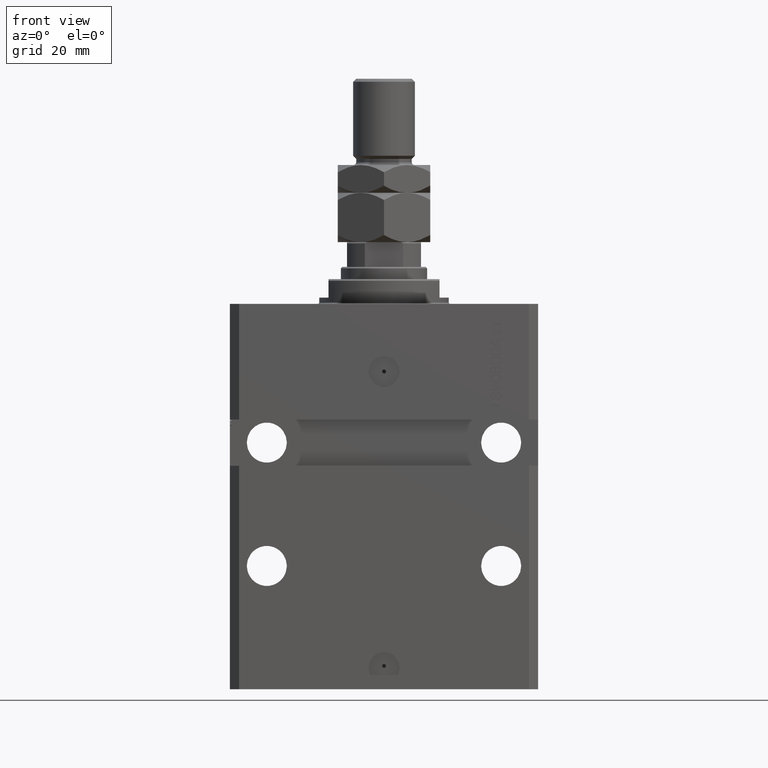
[diagram: clean part render]
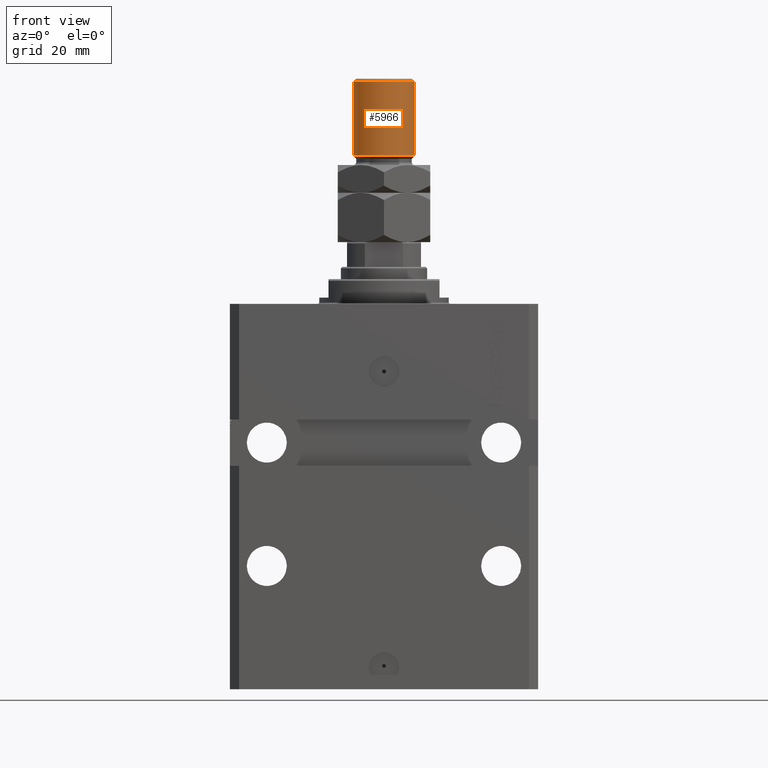
[diagram: same view with one face highlighted and labeled with its STEP entity id]
A machine part, front view. The second image highlights one B-rep face of the part: STEP entity #5966.
In plain terms, the highlighted cylindrical surface (edge-blend (fillet) strip) has radius 10 mm, axis along (-0, -0, -1).
Its self-contained STEP definition (entity closure, byte-faithful):
#3225 = CARTESIAN_POINT ( 'NONE',  ( 0.000000000000000000, 0.000000000000000000, 28.00000000000002487 ) ) ;
#4107 = CARTESIAN_POINT ( 'NONE',  ( 10.00000000000000000, 1.224646799147353059E-15, 52.00000000000004974 ) ) ;
#5966 = ADVANCED_FACE ( 'NONE', ( #34441 ), #23861, .T. ) ;
#8005 = DIRECTION ( 'NONE',  ( -0.000000000000000000, -0.000000000000000000, 1.000000000000000000 ) ) ;
#8508 = CARTESIAN_POINT ( 'NONE',  ( 0.000000000000000000, 0.000000000000000000, 53.00000000000000711 ) ) ;
#9882 = AXIS2_PLACEMENT_3D ( 'NONE', #8508, #34936, #38475 ) ;
#12703 = CIRCLE ( 'NONE', #30361, 10.00000000000000000 ) ;
#18334 = DIRECTION ( 'NONE',  ( -0.000000000000000000, -0.000000000000000000, -1.000000000000000000 ) ) ;
#18897 = EDGE_CURVE ( 'NONE', #27769, #48229, #12703, .T. ) ;
#22127 = ORIENTED_EDGE ( 'NONE', *, *, #29991, .T. ) ;
#22800 = LINE ( 'NONE', #26576, #34835 ) ;
#22975 = DIRECTION ( 'NONE',  ( 0.000000000000000000, 0.000000000000000000, -1.000000000000000000 ) ) ;
#23085 = ORIENTED_EDGE ( 'NONE', *, *, #28772, .T. ) ;
#23861 = CYLINDRICAL_SURFACE ( 'NONE', #9882, 10.00000000000000000 ) ;
#24537 = VERTEX_POINT ( 'NONE', #37873 ) ;
#25872 = CIRCLE ( 'NONE', #26711, 10.00000000000000000 ) ;
#26576 = CARTESIAN_POINT ( 'NONE',  ( -10.00000000000000000, 0.000000000000000000, 53.00000000000000711 ) ) ;
#26711 = AXIS2_PLACEMENT_3D ( 'NONE', #3225, #8005, #30149 ) ;
#27769 = VERTEX_POINT ( 'NONE', #4107 ) ;
#28705 = ORIENTED_EDGE ( 'NONE', *, *, #38247, .F. ) ;
#28772 = EDGE_CURVE ( 'NONE', #35304, #24537, #25872, .T. ) ;
#29991 = EDGE_CURVE ( 'NONE', #48229, #35304, #22800, .T. ) ;
#30149 = DIRECTION ( 'NONE',  ( 1.000000000000000000, 0.000000000000000000, 0.000000000000000000 ) ) ;
#30361 = AXIS2_PLACEMENT_3D ( 'NONE', #46635, #22975, #34308 ) ;
#34308 = DIRECTION ( 'NONE',  ( 1.000000000000000000, 0.000000000000000000, 0.000000000000000000 ) ) ;
#34441 = FACE_OUTER_BOUND ( 'NONE', #48639, .T. ) ;
#34835 = VECTOR ( 'NONE', #38160, 1000.000000000000000 ) ;
#34936 = DIRECTION ( 'NONE',  ( -0.000000000000000000, -0.000000000000000000, -1.000000000000000000 ) ) ;
#35304 = VERTEX_POINT ( 'NONE', #48437 ) ;
#37873 = CARTESIAN_POINT ( 'NONE',  ( 10.00000000000000000, 1.224646799147353059E-15, 28.00000000000002487 ) ) ;
#38160 = DIRECTION ( 'NONE',  ( -0.000000000000000000, -0.000000000000000000, -1.000000000000000000 ) ) ;
#38247 = EDGE_CURVE ( 'NONE', #27769, #24537, #46007, .T. ) ;
#38475 = DIRECTION ( 'NONE',  ( -1.000000000000000000, 0.000000000000000000, 0.000000000000000000 ) ) ;
#42215 = CARTESIAN_POINT ( 'NONE',  ( 10.00000000000000000, 1.224646799147353059E-15, 53.00000000000000711 ) ) ;
#43832 = ORIENTED_EDGE ( 'NONE', *, *, #18897, .T. ) ;
#46007 = LINE ( 'NONE', #42215, #46371 ) ;
#46371 = VECTOR ( 'NONE', #18334, 1000.000000000000000 ) ;
#46635 = CARTESIAN_POINT ( 'NONE',  ( 0.000000000000000000, 0.000000000000000000, 52.00000000000004974 ) ) ;
#48143 = CARTESIAN_POINT ( 'NONE',  ( -10.00000000000000000, 0.000000000000000000, 52.00000000000004974 ) ) ;
#48229 = VERTEX_POINT ( 'NONE', #48143 ) ;
#48437 = CARTESIAN_POINT ( 'NONE',  ( -10.00000000000000000, 0.000000000000000000, 28.00000000000002487 ) ) ;
#48639 = EDGE_LOOP ( 'NONE', ( #28705, #43832, #22127, #23085 ) ) ;